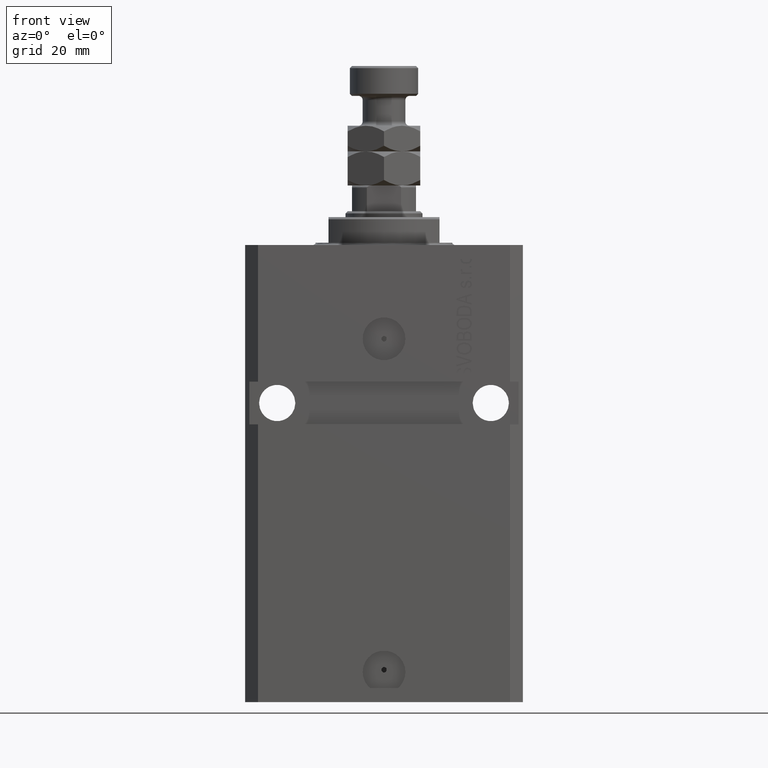
[diagram: clean part render]
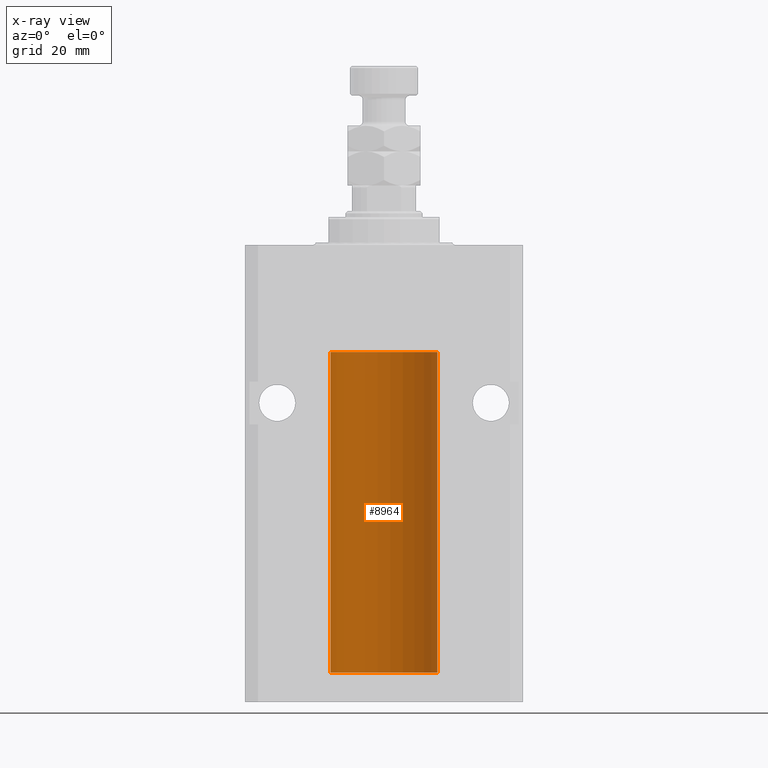
[diagram: x-ray — body ghosted, one internal face saturated and labeled with its STEP entity id]
A machine part, front view, then the same camera in x-ray: the body is ghosted and one INTERNAL B-rep face — a face not visible from any outside direction — is saturated and labeled: STEP entity #8964.
In plain terms, the highlighted cylindrical surface (partial cylindrical patch) has radius 12.5 mm, axis along (0, 0, 1).
Its self-contained STEP definition (entity closure, byte-faithful):
#489 = CARTESIAN_POINT ( 'NONE',  ( 12.49999999999999822, 0.1631389616600901760, -94.37500000000024158 ) ) ;
#937 = DIRECTION ( 'NONE',  ( 1.000000000000000000, 0.000000000000000000, 0.000000000000000000 ) ) ;
#2266 = CARTESIAN_POINT ( 'NONE',  ( -12.50000000000000000, -1.522152011595579853E-14, -94.37500000000000000 ) ) ;
#2736 = EDGE_CURVE ( 'NONE', #36789, #46553, #37324, .T. ) ;
#2912 = CARTESIAN_POINT ( 'NONE',  ( 12.50000000000000000, 0.000000000000000000, -100.0999999999999943 ) ) ;
#3510 = CARTESIAN_POINT ( 'NONE',  ( 12.48436522214846711, 0.6250000000078848039, -94.99999999999923261 ) ) ;
#4248 = CARTESIAN_POINT ( 'NONE',  ( 12.48436522214888100, 0.6249999999996834754, -94.91847339462351840 ) ) ;
#4636 = VERTEX_POINT ( 'NONE', #39018 ) ;
#4698 = CARTESIAN_POINT ( 'NONE',  ( 0.000000000000000000, 0.000000000000000000, -100.0999999999999943 ) ) ;
#5175 = CARTESIAN_POINT ( 'NONE',  ( -12.49999999999999112, 0.1631761135151224562, -95.62499999999980105 ) ) ;
#5552 = ORIENTED_EDGE ( 'NONE', *, *, #22578, .T. ) ;
#5676 = CARTESIAN_POINT ( 'NONE',  ( -12.49011732893843529, 0.5003763274120199833, -95.38348111289285214 ) ) ;
#6169 = CARTESIAN_POINT ( 'NONE',  ( -12.49625855304194033, 0.3150454781037993479, -94.45402800297488000 ) ) ;
#6257 = CARTESIAN_POINT ( 'NONE',  ( 12.49915742890631876, 0.1636982395582385896, -95.60872397847028026 ) ) ;
#6567 = B_SPLINE_CURVE_WITH_KNOTS ( 'NONE', 3,
 ( #13417, #39619, #27908, #6169, #31644, #43120, #8942, #24147, #39376, #17170, #5676, #20913, #5175, #35626 ),
 .UNSPECIFIED., .F., .F.,
 ( 4, 2, 2, 2, 2, 2, 4 ),
 ( 3.486178718436696769E-18, 0.0002442924852390829216, 0.0004885849704781623738, 0.0009771699409563507684, 0.001221462426195465403, 0.001465754911434580254, 0.001954339881912780900 ),
 .UNSPECIFIED. ) ;
#7093 = AXIS2_PLACEMENT_3D ( 'NONE', #21185, #13197, #43873 ) ;
#8898 = CARTESIAN_POINT ( 'NONE',  ( 12.50000000000000000, 0.000000000000000000, -100.0999999999999943 ) ) ;
#8942 = CARTESIAN_POINT ( 'NONE',  ( -12.48436813453758631, 0.6249418250771134886, -94.83668996798924411 ) ) ;
#8964 = ADVANCED_FACE ( 'NONE', ( #31643 ), #38903, .F. ) ;
#10421 = DIRECTION ( 'NONE',  ( -0.000000000000000000, -0.000000000000000000, 1.000000000000000000 ) ) ;
#11198 = DIRECTION ( 'NONE',  ( 0.000000000000000000, 0.000000000000000000, 1.000000000000000000 ) ) ;
#12724 = CARTESIAN_POINT ( 'NONE',  ( 12.48436522214846711, 0.6250000000078848039, -94.99999999999923261 ) ) ;
#13197 = DIRECTION ( 'NONE',  ( 0.000000000000000000, 0.000000000000000000, 1.000000000000000000 ) ) ;
#13277 = EDGE_LOOP ( 'NONE', ( #28185, #16676, #19804, #21021, #40652, #26292, #44508, #48967, #5552 ) ) ;
#13417 = CARTESIAN_POINT ( 'NONE',  ( -12.50000000000000000, -1.522152011595579853E-14, -94.37500000000000000 ) ) ;
#13690 = EDGE_CURVE ( 'NONE', #27464, #36789, #22400, .T. ) ;
#15755 = CARTESIAN_POINT ( 'NONE',  ( 12.50000000000017941, 3.868073689162038701E-13, -94.37499999999640465 ) ) ;
#15900 = VERTEX_POINT ( 'NONE', #19739 ) ;
#16029 = EDGE_CURVE ( 'NONE', #18870, #15900, #28511, .T. ) ;
#16243 = CARTESIAN_POINT ( 'NONE',  ( 12.48520578595314845, 0.6087855079133740466, -94.83656717509346379 ) ) ;
#16676 = ORIENTED_EDGE ( 'NONE', *, *, #36388, .F. ) ;
#16893 = CARTESIAN_POINT ( 'NONE',  ( 12.50000000000000000, -1.836039810331332019E-15, -95.62500000000000000 ) ) ;
#17004 = CARTESIAN_POINT ( 'NONE',  ( 12.49999999999999822, 0.08262306818362624705, -95.62499999999998579 ) ) ;
#17170 = CARTESIAN_POINT ( 'NONE',  ( -12.48809959379011403, 0.5462151254764922026, -95.31461370481613926 ) ) ;
#17703 = VERTEX_POINT ( 'NONE', #24002 ) ;
#18870 = VERTEX_POINT ( 'NONE', #41260 ) ;
#19242 = CARTESIAN_POINT ( 'NONE',  ( 12.49631206032076136, 0.3252904079142934779, -94.44139700214928723 ) ) ;
#19539 = CARTESIAN_POINT ( 'NONE',  ( 12.50000000000017941, 3.868073689162038701E-13, -94.37499999999640465 ) ) ;
#19739 = CARTESIAN_POINT ( 'NONE',  ( -12.50000000000000000, 1.530808498934191521E-15, -25.10000000000000142 ) ) ;
#19804 = ORIENTED_EDGE ( 'NONE', *, *, #13690, .T. ) ;
#19940 = DIRECTION ( 'NONE',  ( -0.000000000000000000, -0.000000000000000000, 1.000000000000000000 ) ) ;
#20696 = CARTESIAN_POINT ( 'NONE',  ( 12.50000000000000000, 0.000000000000000000, -100.0999999999999943 ) ) ;
#20913 = CARTESIAN_POINT ( 'NONE',  ( -12.49631005746706514, 0.3253680783018457756, -95.55856740465388555 ) ) ;
#21021 = ORIENTED_EDGE ( 'NONE', *, *, #2736, .T. ) ;
#21167 = EDGE_CURVE ( 'NONE', #17703, #4636, #39870, .T. ) ;
#21185 = CARTESIAN_POINT ( 'NONE',  ( 0.000000000000000000, 0.000000000000000000, -100.0999999999999943 ) ) ;
#21322 = AXIS2_PLACEMENT_3D ( 'NONE', #48101, #11198, #40638 ) ;
#21724 = CARTESIAN_POINT ( 'NONE',  ( 12.50000000000000000, -1.836039810331332019E-15, -95.62500000000000000 ) ) ;
#22400 = LINE ( 'NONE', #2912, #22859 ) ;
#22578 = EDGE_CURVE ( 'NONE', #45434, #4636, #6567, .T. ) ;
#22859 = VECTOR ( 'NONE', #10421, 1000.000000000000000 ) ;
#24002 = CARTESIAN_POINT ( 'NONE',  ( -12.50000000000000000, 1.530808498934191521E-15, -100.0999999999999943 ) ) ;
#24147 = CARTESIAN_POINT ( 'NONE',  ( -12.48436376893640620, 0.6250290278979871994, -95.08132082824478459 ) ) ;
#24962 = CARTESIAN_POINT ( 'NONE',  ( 12.49421963472024721, 0.3844519291903572555, -95.49947303647047647 ) ) ;
#25249 = VECTOR ( 'NONE', #35904, 1000.000000000000000 ) ;
#26292 = ORIENTED_EDGE ( 'NONE', *, *, #31987, .T. ) ;
#27464 = VERTEX_POINT ( 'NONE', #8898 ) ;
#27908 = CARTESIAN_POINT ( 'NONE',  ( -12.49915784441387068, 0.1636601911727894876, -94.39126818989429069 ) ) ;
#27951 = CARTESIAN_POINT ( 'NONE',  ( 12.48810305280568222, 0.5461368461738485003, -94.68525466142676805 ) ) ;
#28166 = B_SPLINE_CURVE_WITH_KNOTS ( 'NONE', 3,
 ( #12724, #4248, #16243, #27951, #39423, #19242, #489, #15755 ),
 .UNSPECIFIED., .F., .F.,
 ( 4, 2, 2, 4 ),
 ( 0.0009773924225142606621, 0.001221629287363811033, 0.001465866152213361404, 0.001954339881912461711 ),
 .UNSPECIFIED. ) ;
#28185 = ORIENTED_EDGE ( 'NONE', *, *, #21167, .F. ) ;
#28511 = CIRCLE ( 'NONE', #21322, 12.50000000000000000 ) ;
#28834 = EDGE_CURVE ( 'NONE', #45434, #15900, #41376, .T. ) ;
#29426 = CIRCLE ( 'NONE', #7093, 12.50000000000000000 ) ;
#29449 = EDGE_CURVE ( 'NONE', #46553, #37442, #28166, .T. ) ;
#29464 = VECTOR ( 'NONE', #39380, 1000.000000000000000 ) ;
#29975 = AXIS2_PLACEMENT_3D ( 'NONE', #4698, #19940, #937 ) ;
#31643 = FACE_OUTER_BOUND ( 'NONE', #13277, .T. ) ;
#31644 = CARTESIAN_POINT ( 'NONE',  ( -12.49422197749723829, 0.3843754434364257122, -94.50047099568094211 ) ) ;
#31987 = EDGE_CURVE ( 'NONE', #37442, #18870, #39651, .T. ) ;
#35626 = CARTESIAN_POINT ( 'NONE',  ( -12.50000000000017941, 3.883381774819353300E-13, -95.62500000000359535 ) ) ;
#35904 = DIRECTION ( 'NONE',  ( -0.000000000000000000, -0.000000000000000000, 1.000000000000000000 ) ) ;
#35953 = CARTESIAN_POINT ( 'NONE',  ( 12.48436522214885969, 0.6250000000001505462, -95.16312747540308692 ) ) ;
#36388 = EDGE_CURVE ( 'NONE', #27464, #17703, #29426, .T. ) ;
#36695 = CARTESIAN_POINT ( 'NONE',  ( 12.48436522214846711, 0.6250000000078848039, -94.99999999999923261 ) ) ;
#36789 = VERTEX_POINT ( 'NONE', #16893 ) ;
#36889 = CARTESIAN_POINT ( 'NONE',  ( -12.50000000000000000, 1.530808498934191521E-15, -100.0999999999999943 ) ) ;
#37324 = B_SPLINE_CURVE_WITH_KNOTS ( 'NONE', 3,
 ( #21724, #17004, #6257, #43930, #24962, #47414, #35953, #36695 ),
 .UNSPECIFIED., .F., .F.,
 ( 4, 2, 2, 4 ),
 ( 1.784246692340212412E-18, 0.0002443481056285665750, 0.0004886962112571313068, 0.0009773924225142606621 ),
 .UNSPECIFIED. ) ;
#37442 = VERTEX_POINT ( 'NONE', #19539 ) ;
#37892 = DIRECTION ( 'NONE',  ( -0.000000000000000000, -0.000000000000000000, 1.000000000000000000 ) ) ;
#38903 = CYLINDRICAL_SURFACE ( 'NONE', #29975, 12.50000000000000000 ) ;
#39018 = CARTESIAN_POINT ( 'NONE',  ( -12.50000000000017941, 3.883381774819353300E-13, -95.62500000000359535 ) ) ;
#39376 = CARTESIAN_POINT ( 'NONE',  ( -12.48520330846397997, 0.6088355886774070580, -95.16325431852561678 ) ) ;
#39380 = DIRECTION ( 'NONE',  ( -0.000000000000000000, -0.000000000000000000, 1.000000000000000000 ) ) ;
#39423 = CARTESIAN_POINT ( 'NONE',  ( 12.49012055744648997, 0.5002956126656082914, -94.61641710202405875 ) ) ;
#39619 = CARTESIAN_POINT ( 'NONE',  ( -12.50000000000000000, 0.08260426088727994276, -94.37499999999998579 ) ) ;
#39651 = LINE ( 'NONE', #20696, #25249 ) ;
#39870 = LINE ( 'NONE', #46859, #29464 ) ;
#40638 = DIRECTION ( 'NONE',  ( 1.000000000000000000, 0.000000000000000000, 0.000000000000000000 ) ) ;
#40652 = ORIENTED_EDGE ( 'NONE', *, *, #29449, .T. ) ;
#40789 = VECTOR ( 'NONE', #37892, 1000.000000000000000 ) ;
#41260 = CARTESIAN_POINT ( 'NONE',  ( 12.50000000000000000, 0.000000000000000000, -25.10000000000000142 ) ) ;
#41376 = LINE ( 'NONE', #36889, #40789 ) ;
#43120 = CARTESIAN_POINT ( 'NONE',  ( -12.48810268015257741, 0.5573155909661239304, -94.67347410093871929 ) ) ;
#43873 = DIRECTION ( 'NONE',  ( 1.000000000000000000, 0.000000000000000000, 0.000000000000000000 ) ) ;
#43930 = CARTESIAN_POINT ( 'NONE',  ( 12.49625698805481022, 0.3151108292486944906, -95.54593695688171806 ) ) ;
#44508 = ORIENTED_EDGE ( 'NONE', *, *, #16029, .T. ) ;
#45434 = VERTEX_POINT ( 'NONE', #2266 ) ;
#46553 = VERTEX_POINT ( 'NONE', #3510 ) ;
#46859 = CARTESIAN_POINT ( 'NONE',  ( -12.50000000000000000, 1.530808498934191521E-15, -100.0999999999999943 ) ) ;
#47414 = CARTESIAN_POINT ( 'NONE',  ( 12.48809900631782099, 0.5573988467445673001, -95.32640147935475738 ) ) ;
#48101 = CARTESIAN_POINT ( 'NONE',  ( 0.000000000000000000, 0.000000000000000000, -25.10000000000000142 ) ) ;
#48967 = ORIENTED_EDGE ( 'NONE', *, *, #28834, .F. ) ;